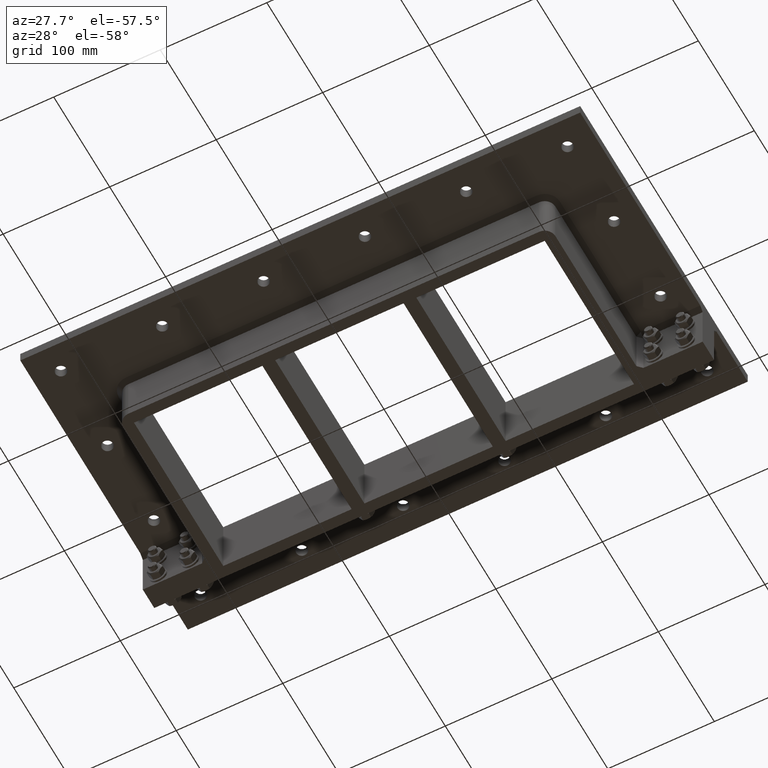
[diagram: clean part render]
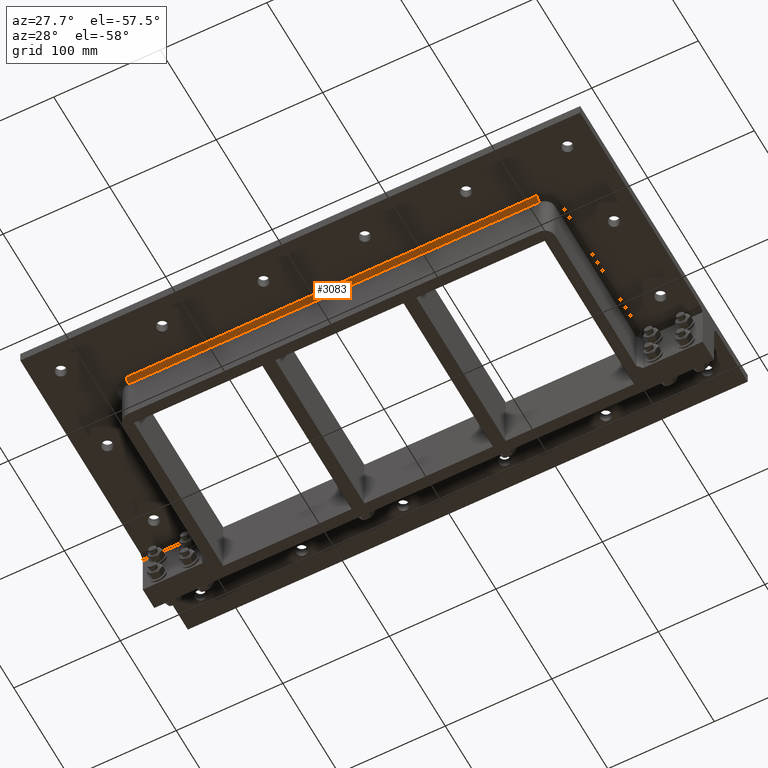
[diagram: same view with one face highlighted and labeled with its STEP entity id]
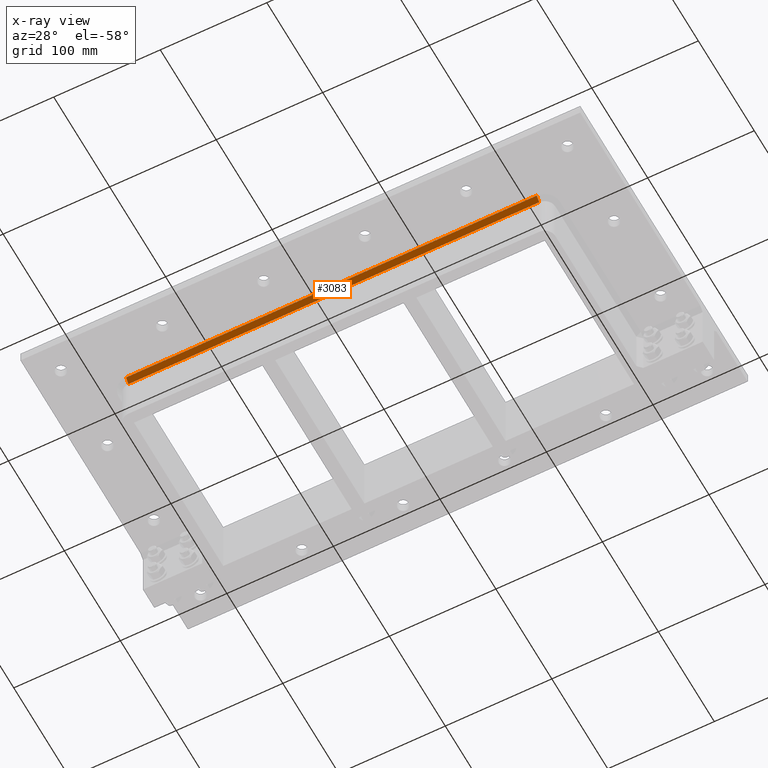
[diagram: x-ray of the same camera — body ghosted, the highlighted face saturated]
A machine part, auxiliary view. The second image highlights one B-rep face of the part: STEP entity #3083.
The next image is the same camera in x-ray: the body ghosted, the highlighted face saturated — about 0% of this face is hidden behind the body in this view.
In plain terms, the highlighted planar face has unit normal (0, -0.7071, -0.7071).
Its self-contained STEP definition (entity closure, byte-faithful):
#524=FACE_OUTER_BOUND('',#697,.T.);
#697=EDGE_LOOP('',(#2169,#2170,#2171,#2172));
#983=LINE('',#4797,#1226);
#984=LINE('',#4803,#1227);
#985=LINE('',#4804,#1228);
#986=LINE('',#4805,#1229);
#1226=VECTOR('',#3846,10.);
#1227=VECTOR('',#3853,10.);
#1228=VECTOR('',#3854,10.);
#1229=VECTOR('',#3855,10.);
#1466=VERTEX_POINT('',#4795);
#1467=VERTEX_POINT('',#4796);
#1468=VERTEX_POINT('',#4801);
#1469=VERTEX_POINT('',#4802);
#1742=EDGE_CURVE('',#1466,#1467,#983,.T.);
#1745=EDGE_CURVE('',#1468,#1469,#984,.T.);
#1746=EDGE_CURVE('',#1469,#1467,#985,.T.);
#1747=EDGE_CURVE('',#1466,#1468,#986,.T.);
#2169=ORIENTED_EDGE('',*,*,#1745,.T.);
#2170=ORIENTED_EDGE('',*,*,#1746,.T.);
#2171=ORIENTED_EDGE('',*,*,#1742,.F.);
#2172=ORIENTED_EDGE('',*,*,#1747,.T.);
#2992=PLANE('',#3474);
#3083=ADVANCED_FACE('',(#524),#2992,.T.);
#3474=AXIS2_PLACEMENT_3D('',#4800,#3851,#3852);
#3846=DIRECTION('',(0.,0.707106781186547,-0.707106781186548));
#3851=DIRECTION('center_axis',(0.,-0.707106781186548,-0.707106781186547));
#3852=DIRECTION('ref_axis',(-1.,0.,0.));
#3853=DIRECTION('',(0.,0.707106781186547,-0.707106781186548));
#3854=DIRECTION('',(1.,0.,0.));
#3855=DIRECTION('',(-1.,0.,0.));
#4795=CARTESIAN_POINT('',(192.75,-94.05,-10.));
#4796=CARTESIAN_POINT('',(192.75,-89.75,-14.3));
#4797=CARTESIAN_POINT('',(192.75,-94.05,-10.));
#4800=CARTESIAN_POINT('Origin',(96.3750000000001,-91.9,-12.15));
#4801=CARTESIAN_POINT('',(-192.75,-94.05,-10.));
#4802=CARTESIAN_POINT('',(-192.75,-89.75,-14.3));
#4803=CARTESIAN_POINT('',(-192.75,-94.05,-10.));
#4804=CARTESIAN_POINT('',(96.3750000000001,-89.75,-14.3));
#4805=CARTESIAN_POINT('',(96.3750000000001,-94.05,-10.));